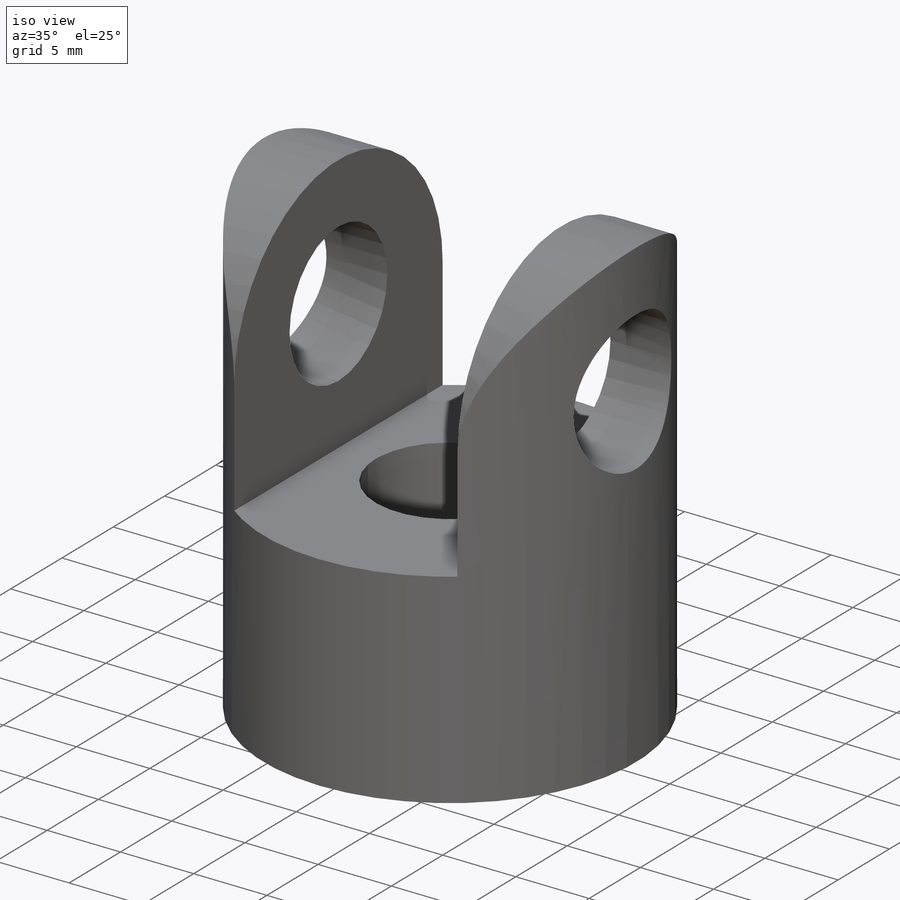
[diagram: iso view]
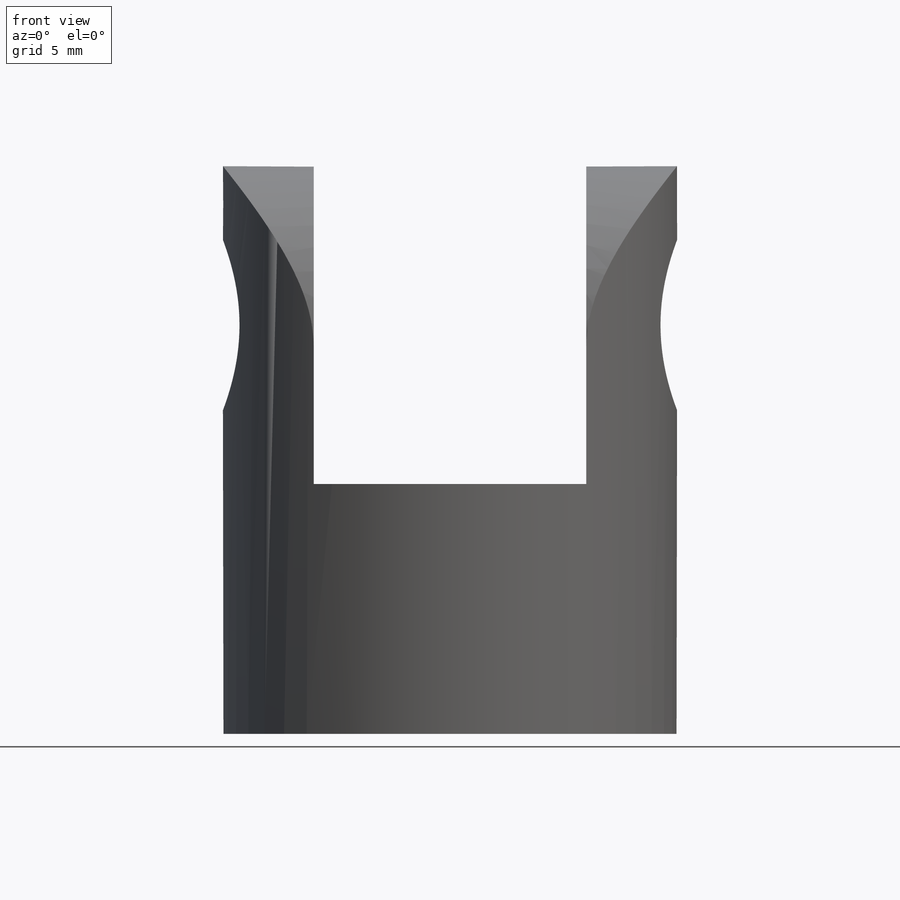
[diagram: front view]
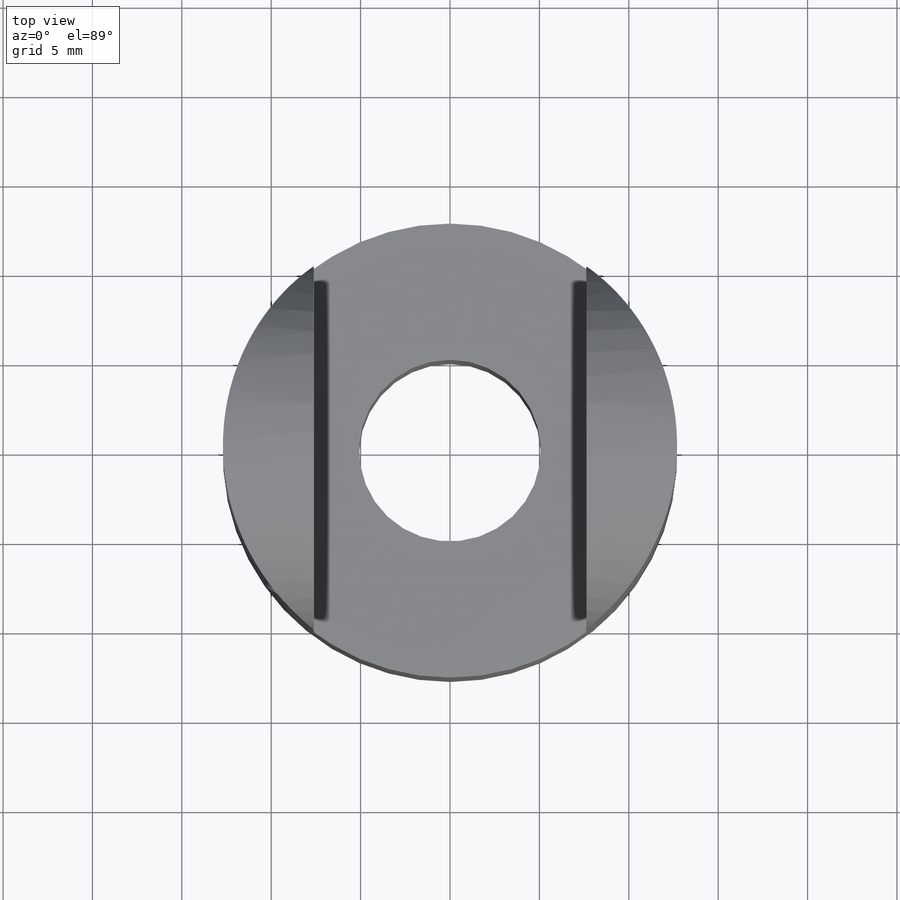
[diagram: top view]
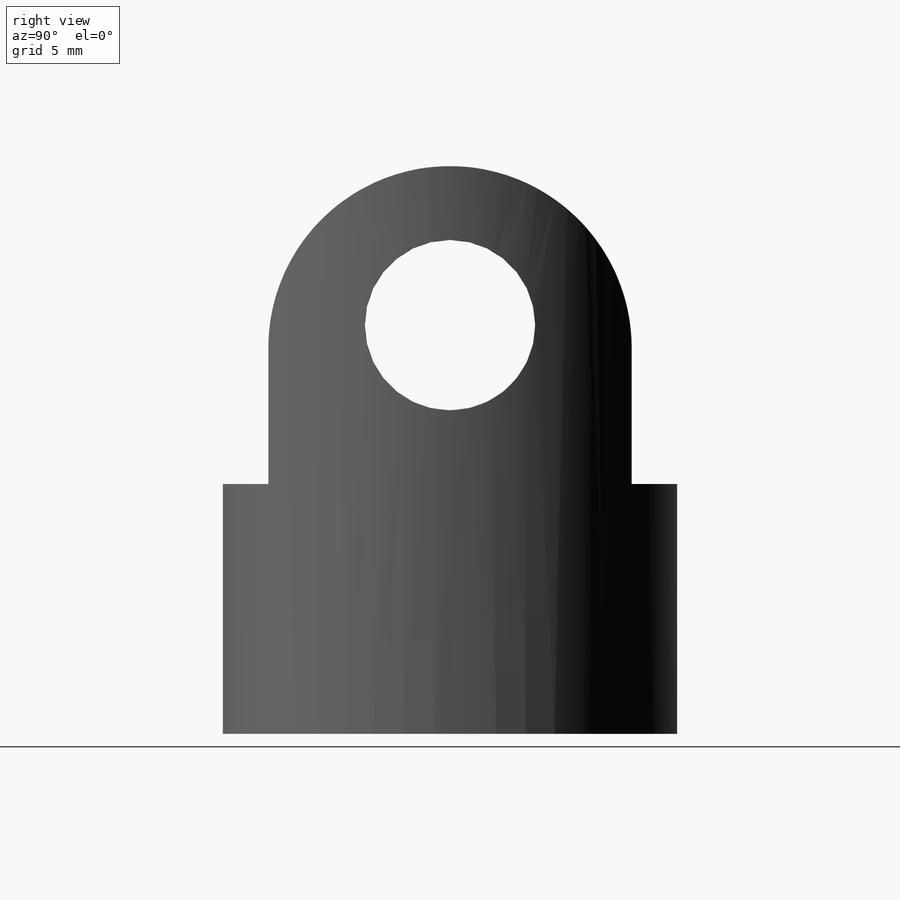
[diagram: right view]
SOLIDWORKS PART (.sldprt)
format: sldprt  version: not decoded by parser v0  size: 252,928 bytes
history: native  units: mm
features: sketch x3, cut_extrude x2, material x1, extrude x1 (+11 scaffold rows collapsed)
feature tree (18):
  scaffold x11  (default folders/planes/origin — collapsed)
  material  "Material <not specified>"
  sketch  "Sketch1"  dims[D1=25.4mm D2=10.16mm]
  extrude  "Boss-Extrude1"  Depth=31.75mm
  sketch  "Sketch2"  dims[D1=17.78mm D2=15.24mm]
  cut_extrude  "Cut-Extrude1"  [1 undecoded]
  sketch  "Sketch3"  dims[D1=9.525mm D2=8.89mm]
  cut_extrude  "Cut-Extrude2"  Depth=38.1mm
decode coverage: 5 of 6 modeling features carry decoded parameters
note: 1 parameter value undecoded
note: suppression state not decoded; provenance and decode notes live in map.json
